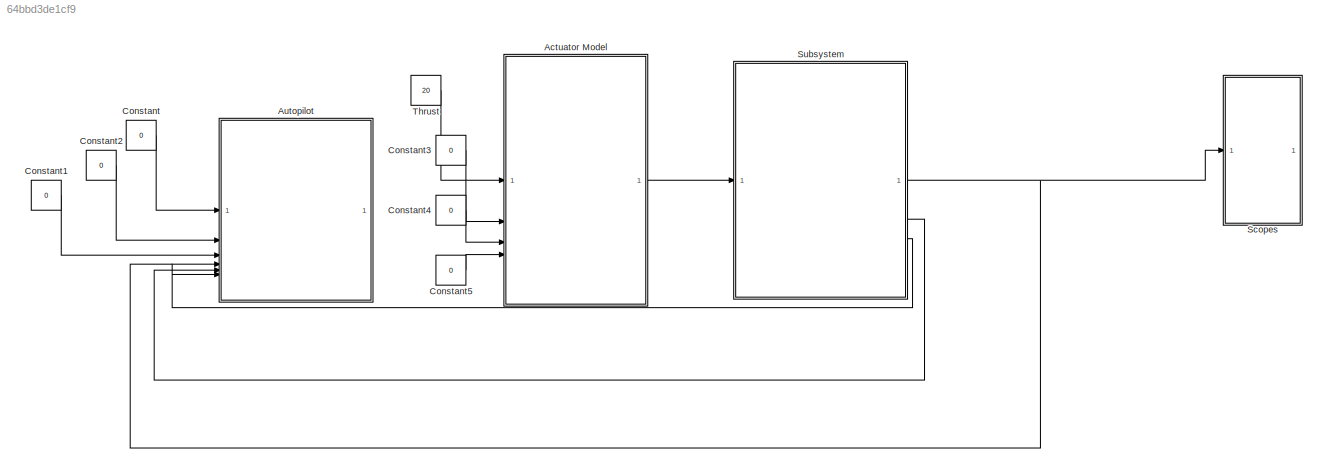
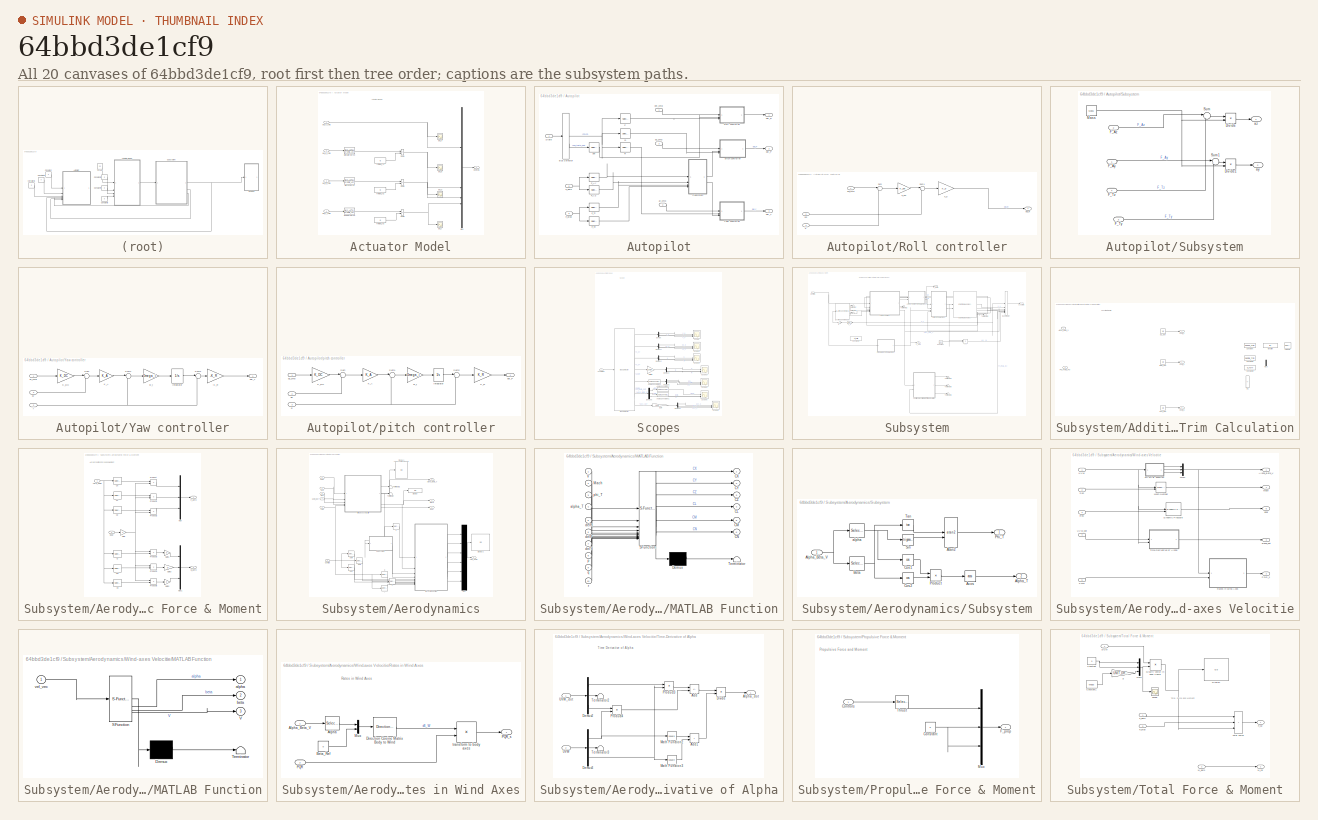
[diagram: thumbnail index - all 20 canvases of the model, root first then tree order]
MODEL slx_64bbd3de1cf9
KIND model
CONFIG AbsTol = auto
CONFIG EnableMultiTasking = off
CONFIG FixedStep = 0.01
CONFIG InitFcn = clc, clear, close all\nUAV_Data\nSim_Parameters
CONFIG MaxStep = auto
CONFIG MinStep = auto
CONFIG RelTol = 1e-3
CONFIG SampleTimeConstraint = Unconstrained
CONFIG SolverName = ode4
CONFIG StartTime = 0.0
CONFIG StopTime = 50
BLOCK [SubSystem] Actuator Model
BLOCK [TransferFcn] Actuator Model/Aileron Servo
  Denominator = [1 2*Zeta_Act*Wn_Act Wn_Act^2]
  Numerator = [Wn_Act^2]
BLOCK [Outport] Actuator Model/Controls
BLOCK [TransferFcn] Actuator Model/Elevator Servo
  Denominator = [1 2*Zeta_Act*Wn_Act Wn_Act^2]
  Numerator = [Wn_Act^2]
BLOCK [Mux] Actuator Model/Mux
  DisplayOption = bar
BLOCK [TransferFcn] Actuator Model/Rudder Servo
  Denominator = [1 2*Zeta_Act*Wn_Act Wn_Act^2]
  Numerator = [Wn_Act^2]
BLOCK [Sum] Actuator Model/Sum1
  IconShape = rectangular
  SaturateOnIntegerOverflow = on
BLOCK [Sum] Actuator Model/Sum2
  IconShape = rectangular
  SaturateOnIntegerOverflow = on
BLOCK [Sum] Actuator Model/Sum3
  IconShape = rectangular
  SaturateOnIntegerOverflow = on
BLOCK [Constant] Actuator Model/Trim del_T1
  Value = 0
BLOCK [Constant] Actuator Model/Trim del_T2
  Value = 0
BLOCK [Constant] Actuator Model/Trim del_T3
  Value = 0
BLOCK [Scope] Actuator Model/del_T
  Floating = off
  NumInputPorts = 1
  ScopeSpecificationString = Simulink.scopes.TimeScopeBlockCfg('CurrentConfiguration', extmgr.ConfigurationSet(extmgr.Configuration('Core','General UI',true),extmgr.Configuration('Core','Source UI',true),extmgr.Configuration('Sources','WiredSimulink',true,'DataLoggingVariableName','ScopeData1'),extmgr.Configuration('Visuals','Time Domain',true,'SerializedDisplays',{struct('MinYLimReal','10.00000','MaxYLimReal','30.00000','YLa...<+1434ch>
BLOCK [Inport] Actuator Model/del_T_cmd
BLOCK [Scope] Actuator Model/del_a
  Floating = off
  NumInputPorts = 1
  ScopeSpecificationString = Simulink.scopes.TimeScopeBlockCfg('CurrentConfiguration', extmgr.ConfigurationSet(extmgr.Configuration('Core','General UI',true),extmgr.Configuration('Core','Source UI',true),extmgr.Configuration('Sources','WiredSimulink',true,'DataLoggingVariableName','ScopeData3'),extmgr.Configuration('Visuals','Time Domain',true,'SerializedDisplays',{struct('MinYLimReal','-1.00000','MaxYLimReal','1.00000','YLab...<+1388ch>
BLOCK [Inport] Actuator Model/del_a_cmd
  Port = 3
BLOCK [Scope] Actuator Model/del_e
  Floating = off
  NumInputPorts = 1
  ScopeSpecificationString = Simulink.scopes.TimeScopeBlockCfg('CurrentConfiguration', extmgr.ConfigurationSet(extmgr.Configuration('Core','General UI',true),extmgr.Configuration('Core','Source UI',true),extmgr.Configuration('Sources','WiredSimulink',true,'DataLoggingVariableName','ScopeData2'),extmgr.Configuration('Visuals','Time Domain',true,'SerializedDisplays',{struct('MinYLimReal','-1.00000','MaxYLimReal','1.00000','YLab...<+1388ch>
BLOCK [Inport] Actuator Model/del_e_cmd
  Port = 2
BLOCK [Scope] Actuator Model/del_r
  Floating = off
  NumInputPorts = 1
  ScopeSpecificationString = Simulink.scopes.TimeScopeBlockCfg('CurrentConfiguration', extmgr.ConfigurationSet(extmgr.Configuration('Core','General UI',true),extmgr.Configuration('Core','Source UI',true),extmgr.Configuration('Sources','WiredSimulink',true,'DataLoggingVariableName','ScopeData4'),extmgr.Configuration('Visuals','Time Domain',true,'SerializedDisplays',{struct('MinYLimReal','-1.00000','MaxYLimReal','1.00000','YLab...<+1388ch>
BLOCK [Inport] Actuator Model/del_r_cmd
  Port = 4
BLOCK [SubSystem] Autopilot
  Commented = on
BLOCK [BusSelector] Autopilot/Bus Selector
  OutputSignals = PQR,Phi_theta_psi
BLOCK [Selector] Autopilot/F_Ay
  IndexOptions = Index vector (dialog)
  Indices = [2]
  InputPortWidth = 3
  OutputSizes = 1
BLOCK [Selector] Autopilot/F_Az
  IndexOptions = Index vector (dialog)
  Indices = [3]
  InputPortWidth = 3
  OutputSizes = 1
BLOCK [Selector] Autopilot/F_Ty
  IndexOptions = Index vector (dialog)
  Indices = [2]
  InputPortWidth = 3
  OutputSizes = 1
BLOCK [Selector] Autopilot/F_Tz
  IndexOptions = Index vector (dialog)
  Indices = [3]
  InputPortWidth = 3
  OutputSizes = 1
BLOCK [Inport] Autopilot/F_aero
  Port = 5
BLOCK [Inport] Autopilot/F_prop
  Port = 6
BLOCK [Selector] Autopilot/P
  IndexOptions = Index vector (dialog)
  Indices = [1]
  InputPortWidth = 3
  OutputSizes = 1
BLOCK [Selector] Autopilot/Q
  IndexOptions = Index vector (dialog)
  Indices = [2]
  InputPortWidth = 3
  OutputSizes = 1
BLOCK [Selector] Autopilot/R
  IndexOptions = Index vector (dialog)
  Indices = [3]
  InputPortWidth = 3
  OutputSizes = 1
BLOCK [SubSystem] Autopilot/Roll controller
BLOCK [Gain] Autopilot/Roll controller/K_p
  Gain = K_p
BLOCK [Gain] Autopilot/Roll controller/K_phi
  Gain = K_phi
BLOCK [Sum] Autopilot/Roll controller/Sum
  Inputs = |+-
BLOCK [Sum] Autopilot/Roll controller/Sum1
  Inputs = |+-
BLOCK [Outport] Autopilot/Roll controller/del_R
BLOCK [Inport] Autopilot/Roll controller/p
  Port = 3
BLOCK [Inport] Autopilot/Roll controller/phi
  Port = 2
BLOCK [Inport] Autopilot/Roll controller/phi_cmd
BLOCK [Inport] Autopilot/State
  Port = 4
BLOCK [SubSystem] Autopilot/Subsystem
BLOCK [Product] Autopilot/Subsystem/Divide
  Inputs = */
BLOCK [Product] Autopilot/Subsystem/Divide1
  Inputs = */
BLOCK [Inport] Autopilot/Subsystem/F_Ay
BLOCK [Inport] Autopilot/Subsystem/F_Az
  Port = 2
BLOCK [Inport] Autopilot/Subsystem/F_Ty
  Port = 3
BLOCK [Inport] Autopilot/Subsystem/F_Tz
  Port = 4
BLOCK [Constant] Autopilot/Subsystem/Mass
  Value = Mass
BLOCK [Sum] Autopilot/Subsystem/Sum
  Inputs = |++
BLOCK [Sum] Autopilot/Subsystem/Sum1
  Inputs = |++
BLOCK [Outport] Autopilot/Subsystem/ay
  Port = 2
BLOCK [Outport] Autopilot/Subsystem/az
BLOCK [SubSystem] Autopilot/Yaw controller
BLOCK [Gain] Autopilot/Yaw controller/-K_R
  Gain = -K_R
BLOCK [Integrator] Autopilot/Yaw controller/Integrator
BLOCK [Gain] Autopilot/Yaw controller/K_A
  Gain = K_A
BLOCK [Gain] Autopilot/Yaw controller/K_DC
  Gain = K_DC
BLOCK [Sum] Autopilot/Yaw controller/Sum
  Inputs = |+-
BLOCK [Sum] Autopilot/Yaw controller/Sum1
  Inputs = |--
BLOCK [Sum] Autopilot/Yaw controller/Sum2
  Inputs = |+-
BLOCK [Inport] Autopilot/Yaw controller/ay
  Port = 3
BLOCK [Inport] Autopilot/Yaw controller/ay_cmd
BLOCK [Outport] Autopilot/Yaw controller/del_Y
BLOCK [Inport] Autopilot/Yaw controller/r
  Port = 2
BLOCK [Gain] Autopilot/Yaw controller/w_i
  Gain = Omega_i
BLOCK [Inport] Autopilot/ay_cmd
  Port = 2
BLOCK [Inport] Autopilot/az_cmd
  Port = 3
BLOCK [Outport] Autopilot/del_P
  Port = 2
BLOCK [Outport] Autopilot/del_R
BLOCK [Outport] Autopilot/del_Y
  Port = 3
BLOCK [Selector] Autopilot/phi
  IndexOptions = Index vector (dialog)
  Indices = [1]
  InputPortWidth = 3
  OutputSizes = 1
BLOCK [Inport] Autopilot/phi_cmd
BLOCK [SubSystem] Autopilot/pitch controller
BLOCK [Integrator] Autopilot/pitch controller/Integrator
BLOCK [Gain] Autopilot/pitch controller/K_A
  Gain = K_A
BLOCK [Gain] Autopilot/pitch controller/K_DC
  Gain = K_DC
BLOCK [Gain] Autopilot/pitch controller/K_R
  Gain = K_R
BLOCK [Sum] Autopilot/pitch controller/Sum
  Inputs = |+-
BLOCK [Sum] Autopilot/pitch controller/Sum1
  Inputs = |-+
BLOCK [Sum] Autopilot/pitch controller/Sum2
  Inputs = |++
BLOCK [Inport] Autopilot/pitch controller/az
  Port = 2
BLOCK [Inport] Autopilot/pitch controller/az_cmd
BLOCK [Outport] Autopilot/pitch controller/del_P
BLOCK [Inport] Autopilot/pitch controller/q
  Port = 3
BLOCK [Gain] Autopilot/pitch controller/w_i
  Gain = Omega_i
BLOCK [Constant] Constant
  Value = 0
BLOCK [Constant] Constant1
  Value = 0
BLOCK [Constant] Constant2
  Value = 0
BLOCK [Constant] Constant3
  Value = 0
BLOCK [Constant] Constant4
  Value = 0
BLOCK [Constant] Constant5
  Value = 0
BLOCK [SubSystem] Scopes
BLOCK [Reference] Scopes/Angle Conversion1  REF=aerolibconvert2/Angle Conversion
  SourceBlock = aerolibconvert2/Angle Conversion
  SourceType = Angle Conversion
BLOCK [Reference] Scopes/Angle Conversion6  REF=aerolibconvert2/Angle Conversion
  SourceBlock = aerolibconvert2/Angle Conversion
  SourceType = Angle Conversion
BLOCK [Reference] Scopes/Angle Conversion7  REF=aerolibconvert2/Angle Conversion
  SourceBlock = aerolibconvert2/Angle Conversion
  SourceType = Angle Conversion
BLOCK [BusSelector] Scopes/Bus Selector
  OutputSignals = X_e,V_e,UVW,PQR,Phi_theta_psi,Alpha_Beta_V,acc_cg
BLOCK [Demux] Scopes/Demux
  Outputs = 3
BLOCK [Demux] Scopes/Demux1
  Outputs = 3
BLOCK [Demux] Scopes/Demux2
  Outputs = 3
BLOCK [Demux] Scopes/Demux3
  Outputs = 3
BLOCK [Demux] Scopes/Demux4
  Outputs = 3
BLOCK [Demux] Scopes/Demux5
  Outputs = 3
BLOCK [Demux] Scopes/Demux6
  Outputs = 3
BLOCK [Gain] Scopes/Gain
  Gain = 1/UNIT_GRAV
BLOCK [Gain] Scopes/Multiply
  Gain = 180/pi
BLOCK [Scope] Scopes/Scope
  Floating = off
  NumInputPorts = 3
  ScopeSpecificationString = Simulink.scopes.TimeScopeBlockCfg('CurrentConfiguration', extmgr.ConfigurationSet(extmgr.Configuration('Core','General UI',true),extmgr.Configuration('Core','Source UI',true),extmgr.Configuration('Sources','WiredSimulink',true,'DataLoggingVariableName','ScopeData5'),extmgr.Configuration('Visuals','Time Domain',true,'SerializedDisplays',{struct('MinYLimReal','-863.58241','MaxYLimReal','7772.2417','...<+2810ch>
BLOCK [Scope] Scopes/Scope1
  Floating = off
  NumInputPorts = 3
  ScopeSpecificationString = Simulink.scopes.TimeScopeBlockCfg('CurrentConfiguration', extmgr.ConfigurationSet(extmgr.Configuration('Core','General UI',true),extmgr.Configuration('Core','Source UI',true),extmgr.Configuration('Sources','WiredSimulink',true,'DataLoggingVariableName','ScopeData1'),extmgr.Configuration('Visuals','Time Domain',true,'SerializedDisplays',{struct('MinYLimReal','42.6534','MaxYLimReal','259.70518','YLa...<+2794ch>
BLOCK [Scope] Scopes/Scope2
  Floating = off
  NumInputPorts = 3
  ScopeSpecificationString = Simulink.scopes.TimeScopeBlockCfg('CurrentConfiguration', extmgr.ConfigurationSet(extmgr.Configuration('Core','General UI',true),extmgr.Configuration('Core','Source UI',true),extmgr.Configuration('Sources','WiredSimulink',true,'DataLoggingVariableName','ScopeData2'),extmgr.Configuration('Visuals','Time Domain',true,'SerializedDisplays',{struct('MinYLimReal','199.47505','MaxYLimReal','277.11228','Y...<+2791ch>
BLOCK [Scope] Scopes/Scope3
  Floating = off
  NumInputPorts = 3
  ScopeSpecificationString = Simulink.scopes.TimeScopeBlockCfg('CurrentConfiguration', extmgr.ConfigurationSet(extmgr.Configuration('Core','General UI',true),extmgr.Configuration('Core','Source UI',true),extmgr.Configuration('Sources','WiredSimulink',true,'DataLoggingVariableName','ScopeData3'),extmgr.Configuration('Visuals','Time Domain',true,'SerializedDisplays',{struct('MinYLimReal','-4.98411','MaxYLimReal','0.55379','YLab...<+1804ch>
BLOCK [Scope] Scopes/Scope4
  Floating = off
  NumInputPorts = 3
  ScopeSpecificationString = Simulink.scopes.TimeScopeBlockCfg('CurrentConfiguration', extmgr.ConfigurationSet(extmgr.Configuration('Core','General UI',true),extmgr.Configuration('Core','Source UI',true),extmgr.Configuration('Sources','WiredSimulink',true,'DataLoggingVariableName','ScopeData4'),extmgr.Configuration('Visuals','Time Domain',true,'SerializedDisplays',{struct('MinYLimReal','-0.000000000000000000018','MaxYLimReal'...<+2858ch>
BLOCK [Scope] Scopes/Scope5
  Floating = off
  NumInputPorts = 3
  ScopeSpecificationString = Simulink.scopes.TimeScopeBlockCfg('CurrentConfiguration', extmgr.ConfigurationSet(extmgr.Configuration('Core','General UI',true),extmgr.Configuration('Core','Source UI',true),extmgr.Configuration('Sources','WiredSimulink',true,'DataLoggingVariableName','ScopeData6'),extmgr.Configuration('Visuals','Time Domain',true,'SerializedDisplays',{struct('MinYLimReal','-0.67057','MaxYLimReal','0.86654','YLab...<+2796ch>
BLOCK [Scope] Scopes/Scope6
  Floating = off
  NumInputPorts = 3
  ScopeSpecificationString = Simulink.scopes.TimeScopeBlockCfg('CurrentConfiguration', extmgr.ConfigurationSet(extmgr.Configuration('Core','General UI',true),extmgr.Configuration('Core','Source UI',true),extmgr.Configuration('Sources','WiredSimulink',true,'DataLoggingVariableName','ScopeData7'),extmgr.Configuration('Visuals','Time Domain',true),extmgr.Configuration('Tools','Plot Navigation',true),extmgr.Configuration('Tools',...<+40ch>
BLOCK [Inport] Scopes/UAS States
BLOCK [SubSystem] Subsystem
BLOCK [Reference] Subsystem/6DOF (Euler Angles)  REF=shared6dof/6DOF (Euler Angles)
  LibrarySourceBlock = aerolib6dof2/6DOF (Euler Angles)
  SourceBlock = shared6dof/6DOF (Euler Angles)
  SourceType = 6DOF EoM (Body Axis)
BLOCK [Product] Subsystem/Acc
  Inputs = */
  RndMeth = Zero
BLOCK [SubSystem] Subsystem/Additional Contraints for Trim Calculation
  Commented = on
BLOCK [Inport] Subsystem/Additional Contraints for Trim Calculation/Alpha_Beta_V
  PortDimensions = 3
BLOCK [Integrator] Subsystem/Additional Contraints for Trim Calculation/CTC_dot
  InitialCondition = Init_Cnstr3
BLOCK [Outport] Subsystem/Additional Contraints for Trim Calculation/Cnstr_1
BLOCK [Outport] Subsystem/Additional Contraints for Trim Calculation/Cnstr_2
  Port = 2
BLOCK [Outport] Subsystem/Additional Contraints for Trim Calculation/Cnstr_3
  Port = 3
BLOCK [Constant] Subsystem/Additional Contraints for Trim Calculation/Constant
  Value = Speed_Trim
BLOCK [Constant] Subsystem/Additional Contraints for Trim Calculation/Constant1
  Value = Gamma_Trim
BLOCK [Constant] Subsystem/Additional Contraints for Trim Calculation/Constant2
  Value = G_Turn
BLOCK [Mux] Subsystem/Additional Contraints for Trim Calculation/Mux
  DisplayOption = bar
  Inputs = 2
BLOCK [Inport] Subsystem/Additional Contraints for Trim Calculation/Phi_Theta_Psi
  Port = 2
  PortDimensions = 3
BLOCK [Integrator] Subsystem/Additional Contraints for Trim Calculation/ROC_dot
  InitialCondition = Init_Cnstr2
BLOCK [Sum] Subsystem/Additional Contraints for Trim Calculation/SC
  IconShape = rectangular
  Inputs = +-
BLOCK [Integrator] Subsystem/Additional Contraints for Trim Calculation/SC_dot
  InitialCondition = Init_Cnstr1
BLOCK [Fcn] Subsystem/Additional Contraints for Trim Calculation/function
BLOCK [Selector] Subsystem/Additional Contraints for Trim Calculation/selector
  IndexOptions = Index vector (dialog)
  Indices = [3]
  InputPortWidth = 3
  OutputSizes = 1
BLOCK [SubSystem] Subsystem/Aerodynamic Force & Moment
BLOCK [Inport] Subsystem/Aerodynamic Force & Moment/Aero_Coeff
BLOCK [Selector] Subsystem/Aerodynamic Force & Moment/CX
  IndexOptions = Index vector (dialog)
  Indices = [1]
  InputPortWidth = 6
  OutputSizes = 1
BLOCK [Selector] Subsystem/Aerodynamic Force & Moment/CY
  IndexOptions = Index vector (dialog)
  Indices = [2]
  InputPortWidth = 6
  OutputSizes = 1
BLOCK [Selector] Subsystem/Aerodynamic Force & Moment/CZ
  IndexOptions = Index vector (dialog)
  Indices = [3]
  InputPortWidth = 6
  OutputSizes = 1
BLOCK [Selector] Subsystem/Aerodynamic Force & Moment/Cl
  IndexOptions = Index vector (dialog)
  Indices = [4]
  InputPortWidth = 6
  OutputSizes = 1
BLOCK [Selector] Subsystem/Aerodynamic Force & Moment/Cm
  IndexOptions = Index vector (dialog)
  Indices = [5]
  InputPortWidth = 6
  OutputSizes = 1
BLOCK [Selector] Subsystem/Aerodynamic Force & Moment/Cn
  IndexOptions = Index vector (dialog)
  Indices = [6]
  InputPortWidth = 6
  OutputSizes = 1
BLOCK [Outport] Subsystem/Aerodynamic Force & Moment/F_aero
BLOCK [Gain] Subsystem/Aerodynamic Force & Moment/Gain
  Gain = S
BLOCK [Gain] Subsystem/Aerodynamic Force & Moment/Gain1
  Gain = D
BLOCK [Gain] Subsystem/Aerodynamic Force & Moment/Gain2
  Gain = D
BLOCK [Gain] Subsystem/Aerodynamic Force & Moment/Gain3
  Gain = D
BLOCK [Outport] Subsystem/Aerodynamic Force & Moment/M_aero
  Port = 2
BLOCK [Mux] Subsystem/Aerodynamic Force & Moment/Mux
  DisplayOption = bar
  Inputs = 3
BLOCK [Mux] Subsystem/Aerodynamic Force & Moment/Mux1
  DisplayOption = bar
  Inputs = 3
BLOCK [Product] Subsystem/Aerodynamic Force & Moment/Product
BLOCK [Product] Subsystem/Aerodynamic Force & Moment/Product1
BLOCK [Product] Subsystem/Aerodynamic Force & Moment/Product2
BLOCK [Product] Subsystem/Aerodynamic Force & Moment/Product3
BLOCK [Product] Subsystem/Aerodynamic Force & Moment/Product4
BLOCK [Product] Subsystem/Aerodynamic Force & Moment/Product5
BLOCK [Inport] Subsystem/Aerodynamic Force & Moment/qbar
  Port = 2
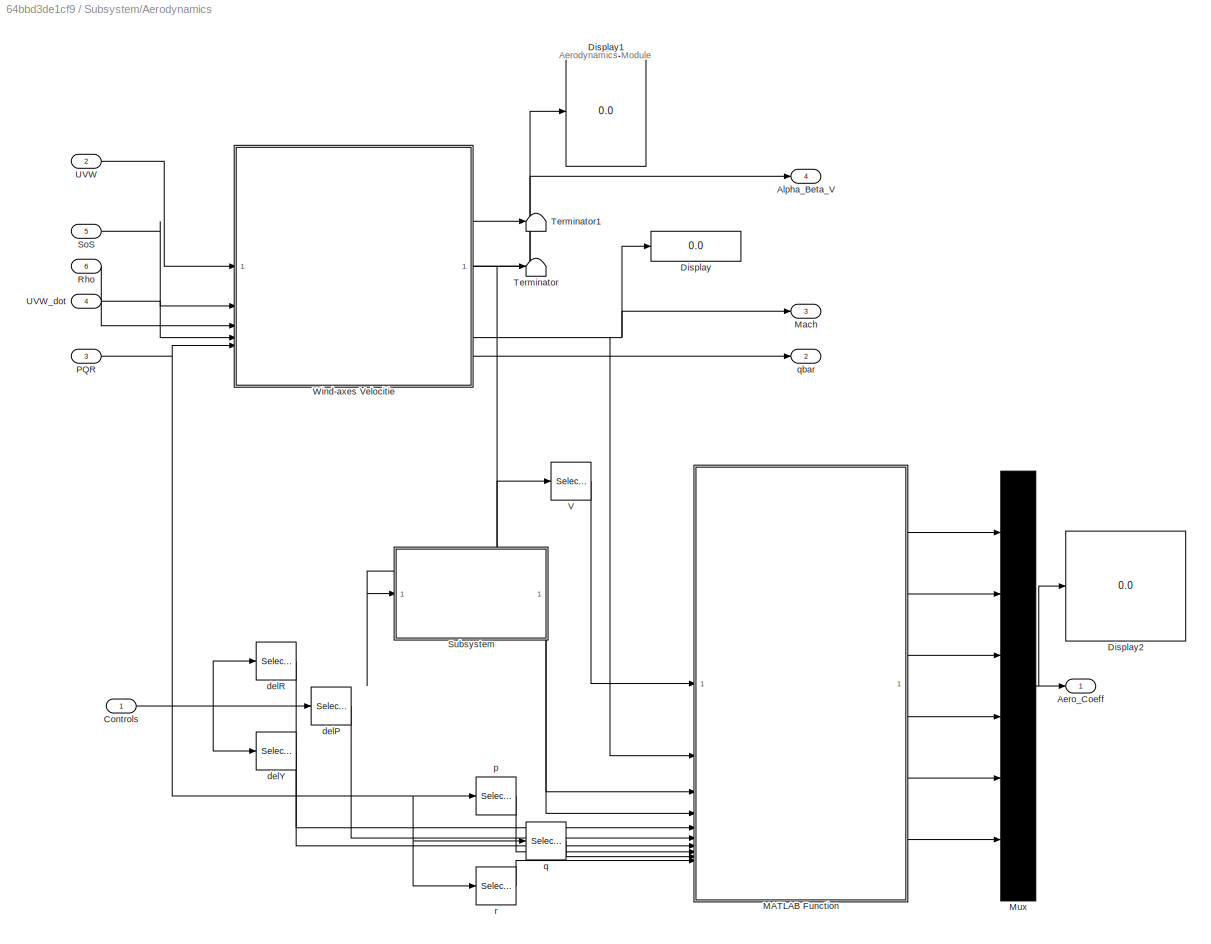
BLOCK [SubSystem] Subsystem/Aerodynamics
BLOCK [Outport] Subsystem/Aerodynamics/Aero_Coeff
BLOCK [Outport] Subsystem/Aerodynamics/Alpha_Beta_V
  Port = 4
BLOCK [Inport] Subsystem/Aerodynamics/Controls
BLOCK [Display] Subsystem/Aerodynamics/Display
  Decimation = 1
BLOCK [Display] Subsystem/Aerodynamics/Display1
  Decimation = 1
BLOCK [Display] Subsystem/Aerodynamics/Display2
  Decimation = 1
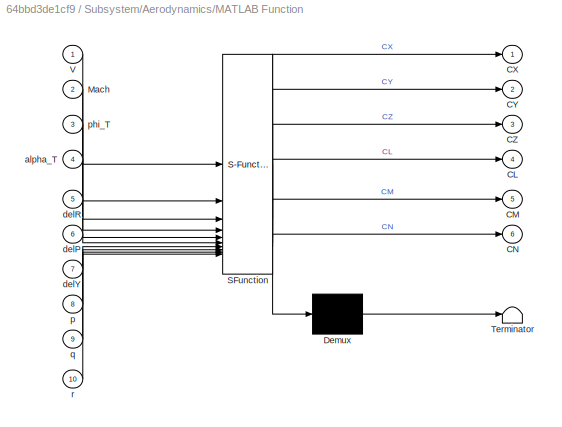
BLOCK [SubSystem] Subsystem/Aerodynamics/MATLAB Function
  ErrorFcn = Stateflow.Translate.translate
  LibrarySourceBlock = simulink/User-Defined\nFunctions/MATLAB Function
  PermitHierarchicalResolution = ExplicitOnly
  SFBlockType = MATLAB Function
  TreatAsAtomicUnit = on
BLOCK [Demux] Subsystem/Aerodynamics/MATLAB Function/ Demux 
  Outputs = 1
BLOCK [S-Function] Subsystem/Aerodynamics/MATLAB Function/ SFunction 
  EnableBusSupport = on
  FunctionName = sf_sfun
  PortCounts = [10 7]
  SFcnIsStateOwnerBlock = off
  SFunctionDeploymentMode = off
  Tag = Stateflow S-Function 2
BLOCK [Terminator] Subsystem/Aerodynamics/MATLAB Function/ Terminator 
BLOCK [Outport] Subsystem/Aerodynamics/MATLAB Function/CL
  Port = 4
BLOCK [Outport] Subsystem/Aerodynamics/MATLAB Function/CM
  Port = 5
BLOCK [Outport] Subsystem/Aerodynamics/MATLAB Function/CN
  Port = 6
BLOCK [Outport] Subsystem/Aerodynamics/MATLAB Function/CX
BLOCK [Outport] Subsystem/Aerodynamics/MATLAB Function/CY
  Port = 2
BLOCK [Outport] Subsystem/Aerodynamics/MATLAB Function/CZ
  Port = 3
BLOCK [Inport] Subsystem/Aerodynamics/MATLAB Function/Mach
  Port = 2
BLOCK [Inport] Subsystem/Aerodynamics/MATLAB Function/V
BLOCK [Inport] Subsystem/Aerodynamics/MATLAB Function/alpha_T
  Port = 4
BLOCK [Inport] Subsystem/Aerodynamics/MATLAB Function/delP
  Port = 6
BLOCK [Inport] Subsystem/Aerodynamics/MATLAB Function/delR
  Port = 5
BLOCK [Inport] Subsystem/Aerodynamics/MATLAB Function/delY
  Port = 7
BLOCK [Inport] Subsystem/Aerodynamics/MATLAB Function/p
  Port = 8
BLOCK [Inport] Subsystem/Aerodynamics/MATLAB Function/phi_T
  Port = 3
BLOCK [Inport] Subsystem/Aerodynamics/MATLAB Function/q
  Port = 9
BLOCK [Inport] Subsystem/Aerodynamics/MATLAB Function/r
  Port = 10
BLOCK [Outport] Subsystem/Aerodynamics/Mach
  Port = 3
BLOCK [Mux] Subsystem/Aerodynamics/Mux
  DisplayOption = bar
  Inputs = 6
BLOCK [Inport] Subsystem/Aerodynamics/PQR
  Port = 3
BLOCK [Inport] Subsystem/Aerodynamics/Rho
  Port = 6
BLOCK [Inport] Subsystem/Aerodynamics/SoS
  Port = 5
BLOCK [SubSystem] Subsystem/Aerodynamics/Subsystem
BLOCK [Trigonometry] Subsystem/Aerodynamics/Subsystem/Acos
  Operator = acos
BLOCK [Inport] Subsystem/Aerodynamics/Subsystem/Alpha_Beta_V
BLOCK [Outport] Subsystem/Aerodynamics/Subsystem/Alpha_T
  Port = 2
BLOCK [Trigonometry] Subsystem/Aerodynamics/Subsystem/Atan2
  Operator = atan2
BLOCK [Selector] Subsystem/Aerodynamics/Subsystem/Beta
  IndexOptions = Index vector (dialog)
  Indices = [2]
  InputPortWidth = 3
  OutputSizes = 1
BLOCK [Trigonometry] Subsystem/Aerodynamics/Subsystem/Cos1
  Operator = cos
BLOCK [Trigonometry] Subsystem/Aerodynamics/Subsystem/Cos2
  Operator = cos
BLOCK [Outport] Subsystem/Aerodynamics/Subsystem/Phi_T
BLOCK [Product] Subsystem/Aerodynamics/Subsystem/Product
BLOCK [Trigonometry] Subsystem/Aerodynamics/Subsystem/Sin
BLOCK [Trigonometry] Subsystem/Aerodynamics/Subsystem/Tan
  Operator = tan
BLOCK [Selector] Subsystem/Aerodynamics/Subsystem/alpha
  IndexOptions = Index vector (dialog)
  Indices = [1]
  InputPortWidth = 3
  OutputSizes = 1
BLOCK [Terminator] Subsystem/Aerodynamics/Terminator
BLOCK [Terminator] Subsystem/Aerodynamics/Terminator1
BLOCK [Inport] Subsystem/Aerodynamics/UVW
  Port = 2
BLOCK [Inport] Subsystem/Aerodynamics/UVW_dot 
  Port = 4
BLOCK [Selector] Subsystem/Aerodynamics/V
  IndexOptions = Index vector (dialog)
  Indices = [3]
  InputPortWidth = 3
  OutputSizes = 1
BLOCK [SubSystem] Subsystem/Aerodynamics/Wind-axes Velocitie
BLOCK [Outport] Subsystem/Aerodynamics/Wind-axes Velocitie/Alpha_Beta_V
BLOCK [Reference] Subsystem/Aerodynamics/Wind-axes Velocitie/Dynamic Pressure  REF=aerolibasang/Dynamic Pressure
  SourceBlock = aerolibasang/Dynamic Pressure
  SourceType = Dynamic Pressure
BLOCK [SubSystem] Subsystem/Aerodynamics/Wind-axes Velocitie/MATLAB Function
  ErrorFcn = Stateflow.Translate.translate
  LibrarySourceBlock = simulink/User-Defined\nFunctions/MATLAB Function
  PermitHierarchicalResolution = ExplicitOnly
  SFBlockType = MATLAB Function
  TreatAsAtomicUnit = on
BLOCK [Demux] Subsystem/Aerodynamics/Wind-axes Velocitie/MATLAB Function/ Demux 
  Outputs = 1
BLOCK [S-Function] Subsystem/Aerodynamics/Wind-axes Velocitie/MATLAB Function/ SFunction 
  EnableBusSupport = on
  FunctionName = sf_sfun
  PortCounts = [1 4]
  SFcnIsStateOwnerBlock = off
  SFunctionDeploymentMode = off
  Tag = Stateflow S-Function 1
BLOCK [Terminator] Subsystem/Aerodynamics/Wind-axes Velocitie/MATLAB Function/ Terminator 
BLOCK [Outport] Subsystem/Aerodynamics/Wind-axes Velocitie/MATLAB Function/V
  Port = 3
BLOCK [Outport] Subsystem/Aerodynamics/Wind-axes Velocitie/MATLAB Function/alpha
BLOCK [Outport] Subsystem/Aerodynamics/Wind-axes Velocitie/MATLAB Function/beta
  Port = 2
BLOCK [Inport] Subsystem/Aerodynamics/Wind-axes Velocitie/MATLAB Function/vel_vec
BLOCK [Outport] Subsystem/Aerodynamics/Wind-axes Velocitie/Mach
  Port = 4
BLOCK [Reference] Subsystem/Aerodynamics/Wind-axes Velocitie/Mach Number  REF=aerolibasang/Mach Number
  SourceBlock = aerolibasang/Mach Number
  SourceType = Mach Number
BLOCK [Mux] Subsystem/Aerodynamics/Wind-axes Velocitie/Mux1
  DisplayOption = bar
  Inputs = 3
BLOCK [Inport] Subsystem/Aerodynamics/Wind-axes Velocitie/PQR
  Port = 5
BLOCK [Outport] Subsystem/Aerodynamics/Wind-axes Velocitie/PQR_s
  Port = 2
BLOCK [SubSystem] Subsystem/Aerodynamics/Wind-axes Velocitie/Rates in Wind Axes
BLOCK [Selector] Subsystem/Aerodynamics/Wind-axes Velocitie/Rates in Wind Axes/Alpha
  IndexOptions = Index vector (dialog)
  Indices = [1]
  InputPortWidth = 3
  OutputSizes = 1
BLOCK [Inport] Subsystem/Aerodynamics/Wind-axes Velocitie/Rates in Wind Axes/Alpha_Beta_V
BLOCK [Constant] Subsystem/Aerodynamics/Wind-axes Velocitie/Rates in Wind Axes/Beta_Ref
  Value = 0
BLOCK [Reference] Subsystem/Aerodynamics/Wind-axes Velocitie/Rates in Wind Axes/Direction Cosine Matrix Body to Wind  REF=aerolibtransform2/Direction Cosine Matrix
Body to Wind
  SourceBlock = aerolibtransform2/Direction Cosine Matrix\nBody to Wind
  SourceType = DCM Body to Wind
BLOCK [Mux] Subsystem/Aerodynamics/Wind-axes Velocitie/Rates in Wind Axes/Mux
  DisplayOption = bar
  Inputs = 2
BLOCK [Inport] Subsystem/Aerodynamics/Wind-axes Velocitie/Rates in Wind Axes/PQR
  Port = 2
BLOCK [Outport] Subsystem/Aerodynamics/Wind-axes Velocitie/Rates in Wind Axes/PQR_s
BLOCK [Product] Subsystem/Aerodynamics/Wind-axes Velocitie/Rates in Wind Axes/transform to body axes
  InputSameDT = on
  Inputs = **
  Multiplication = Matrix(*)
  OutDataTypeStr = Inherit: Same as first input
  SaturateOnIntegerOverflow = on
BLOCK [Inport] Subsystem/Aerodynamics/Wind-axes Velocitie/Rho
  Port = 3
BLOCK [Inport] Subsystem/Aerodynamics/Wind-axes Velocitie/SoS
  Port = 2
BLOCK [SubSystem] Subsystem/Aerodynamics/Wind-axes Velocitie/Time-Derivative of Alpha
BLOCK [Sum] Subsystem/Aerodynamics/Wind-axes Velocitie/Time-Derivative of Alpha/Add
  IconShape = rectangular
  Inputs = -+
BLOCK [Sum] Subsystem/Aerodynamics/Wind-axes Velocitie/Time-Derivative of Alpha/Add1
  IconShape = rectangular
BLOCK [Outport] Subsystem/Aerodynamics/Wind-axes Velocitie/Time-Derivative of Alpha/Alpha_dot
BLOCK [Demux] Subsystem/Aerodynamics/Wind-axes Velocitie/Time-Derivative of Alpha/Demux2
  Outputs = 3
BLOCK [Demux] Subsystem/Aerodynamics/Wind-axes Velocitie/Time-Derivative of Alpha/Demux3
  Outputs = 3
BLOCK [Product] Subsystem/Aerodynamics/Wind-axes Velocitie/Time-Derivative of Alpha/Divide
  Inputs = */
BLOCK [Math] Subsystem/Aerodynamics/Wind-axes Velocitie/Time-Derivative of Alpha/Math Function2
  Operator = square
  SignedPower = on
BLOCK [Math] Subsystem/Aerodynamics/Wind-axes Velocitie/Time-Derivative of Alpha/Math Function3
  Operator = square
  SignedPower = on
BLOCK [Product] Subsystem/Aerodynamics/Wind-axes Velocitie/Time-Derivative of Alpha/Product3
BLOCK [Product] Subsystem/Aerodynamics/Wind-axes Velocitie/Time-Derivative of Alpha/Product4
BLOCK [Terminator] Subsystem/Aerodynamics/Wind-axes Velocitie/Time-Derivative of Alpha/Terminator2
BLOCK [Terminator] Subsystem/Aerodynamics/Wind-axes Velocitie/Time-Derivative of Alpha/Terminator3
BLOCK [Inport] Subsystem/Aerodynamics/Wind-axes Velocitie/Time-Derivative of Alpha/UVW
  Port = 2
BLOCK [Inport] Subsystem/Aerodynamics/Wind-axes Velocitie/Time-Derivative of Alpha/UVW_dot
BLOCK [Inport] Subsystem/Aerodynamics/Wind-axes Velocitie/UVW
BLOCK [Inport] Subsystem/Aerodynamics/Wind-axes Velocitie/UVW_dot
  Port = 4
BLOCK [Outport] Subsystem/Aerodynamics/Wind-axes Velocitie/alpha_dot
  Port = 3
BLOCK [Outport] Subsystem/Aerodynamics/Wind-axes Velocitie/qbar
  Port = 5
BLOCK [Selector] Subsystem/Aerodynamics/delP
  IndexOptions = Index vector (dialog)
  Indices = [3]
  InputPortWidth = 4
  OutputSizes = 1
BLOCK [Selector] Subsystem/Aerodynamics/delR
  IndexOptions = Index vector (dialog)
  Indices = [2]
  InputPortWidth = 4
  OutputSizes = 1
BLOCK [Selector] Subsystem/Aerodynamics/delY
  IndexOptions = Index vector (dialog)
  Indices = [4]
  InputPortWidth = 4
  OutputSizes = 1
BLOCK [Selector] Subsystem/Aerodynamics/p
  IndexOptions = Index vector (dialog)
  Indices = [1]
  InputPortWidth = 3
  OutputSizes = 1
BLOCK [Selector] Subsystem/Aerodynamics/q
  IndexOptions = Index vector (dialog)
  Indices = [2]
  InputPortWidth = 3
  OutputSizes = 1
BLOCK [Outport] Subsystem/Aerodynamics/qbar
  Port = 2
BLOCK [Selector] Subsystem/Aerodynamics/r
  IndexOptions = Index vector (dialog)
  Indices = [3]
  InputPortWidth = 3
  OutputSizes = 1
BLOCK [BusCreator] Subsystem/Bus Creator
  DisplayOption = bar
  InheritFromInputs = on
  Inputs = 7
BLOCK [Constant] Subsystem/Constant
  Value = Mass
BLOCK [Constant] Subsystem/Constant1
  Commented = on
  Value = Alt_Trim
BLOCK [Inport] Subsystem/Controls
BLOCK [Outport] Subsystem/F_aero
  Port = 2
BLOCK [Outport] Subsystem/F_prop
  Port = 3
BLOCK [Reference] Subsystem/ISA Atmosphere Model  REF=aerolibatmos2/ISA Atmosphere Model
  SourceBlock = aerolibatmos2/ISA Atmosphere Model
  SourceType = International Standard Atmosphere Model
BLOCK [SubSystem] Subsystem/Propulsive Force & Moment
BLOCK [Constant] Subsystem/Propulsive Force & Moment/Constant
  Value = 0
BLOCK [Inport] Subsystem/Propulsive Force & Moment/Controls
BLOCK [Outport] Subsystem/Propulsive Force & Moment/F_prop
BLOCK [Mux] Subsystem/Propulsive Force & Moment/Mux
  DisplayOption = bar
  Inputs = 3
BLOCK [Selector] Subsystem/Propulsive Force & Moment/Thrust
  IndexOptions = Index vector (dialog)
  Indices = [1]
  InputPortWidth = 4
  OutputSizes = 1
BLOCK [Terminator] Subsystem/Terminator
BLOCK [Terminator] Subsystem/Terminator1
BLOCK [Terminator] Subsystem/Terminator2
BLOCK [Terminator] Subsystem/Terminator3
BLOCK [Terminator] Subsystem/Terminator4
BLOCK [Terminator] Subsystem/Terminator5
BLOCK [Terminator] Subsystem/Terminator6
BLOCK [SubSystem] Subsystem/Total Force & Moment
BLOCK [Constant] Subsystem/Total Force & Moment/Constant
  Value = 0
BLOCK [Constant] Subsystem/Total Force & Moment/Constant1
  Value = Mass
BLOCK [Inport] Subsystem/Total Force & Moment/DCM
  Port = 4
BLOCK [Display] Subsystem/Total Force & Moment/Display
  Decimation = 1
BLOCK [Inport] Subsystem/Total Force & Moment/F_aero
  PortDimensions = 3
BLOCK [Outport] Subsystem/Total Force & Moment/F_cg
BLOCK [Inport] Subsystem/Total Force & Moment/F_prop
  Port = 3
  PortDimensions = 3
BLOCK [Product] Subsystem/Total Force & Moment/Gravity vector in body frame 
  InputSameDT = on
  Multiplication = Matrix(*)
  OutDataTypeStr = Inherit: Same as first input
  SaturateOnIntegerOverflow = on
BLOCK [Inport] Subsystem/Total Force & Moment/M_aero
  Port = 2
  PortDimensions = 3
BLOCK [Outport] Subsystem/Total Force & Moment/M_cg
  Port = 2
BLOCK [Mux] Subsystem/Total Force & Moment/Mux1
  DisplayOption = bar
  Inputs = 3
BLOCK [Scope] Subsystem/Total Force & Moment/Scope
  Floating = off
  NumInputPorts = 1
  ScopeSpecificationString = Simulink.scopes.TimeScopeBlockCfg('CurrentConfiguration', extmgr.ConfigurationSet(extmgr.Configuration('Core','General UI',true),extmgr.Configuration('Core','Source UI',true),extmgr.Configuration('Sources','WiredSimulink',true,'DataLoggingVariableName','ScopeData8'),extmgr.Configuration('Visuals','Time Domain',true,'SerializedDisplays',{struct('MinYLimReal','-36.7875','MaxYLimReal','331.0875','YLa...<+1545ch>
BLOCK [Sum] Subsystem/Total Force & Moment/Total Force
  IconShape = rectangular
  InputSameDT = on
  Inputs = +++
  OutDataTypeStr = Inherit: Same as first input
  SaturateOnIntegerOverflow = on
BLOCK [Gain] Subsystem/Total Force & Moment/g
  Gain = UNIT_GRAV
BLOCK [Outport] Subsystem/UAS State
BLOCK [Selector] Subsystem/Z_e
  IndexOptions = Index vector (dialog)
  Indices = [3]
  InputPortWidth = 3
  OutputSizes = 1
BLOCK [Gain] Subsystem/h
  Gain = -1
BLOCK [Constant] Thrust
  Value = 20
ANNOTATION Actuator Model: Actuator Models
ANNOTATION Scopes: Scope
ANNOTATION Subsystem: Unmanned Aerial System (UAS) Dynamics Model
ANNOTATION Subsystem/Additional Contraints for Trim Calculation: Constraints for Trim
ANNOTATION Subsystem/Aerodynamic Force & Moment: Aerodynamics Force and Moment
ANNOTATION Subsystem/Aerodynamics: Aerodynamics Module
ANNOTATION Subsystem/Aerodynamics/Wind-axes Velocitie/Rates in Wind Axes: Rates in Wind Axes
ANNOTATION Subsystem/Aerodynamics/Wind-axes Velocitie/Time-Derivative of Alpha: Time Derivative of Alpha
ANNOTATION Subsystem/Propulsive Force & Moment: Propulsive Force and Moment
ANNOTATION Subsystem/Total Force & Moment: Total Force and Moment
LINE Actuator Model/Aileron Servo:1 -> Actuator Model/Sum2:1
LINE Actuator Model/Elevator Servo:1 -> Actuator Model/Sum1:1
LINE Actuator Model/Mux:1 -> Actuator Model/Controls:1
LINE Actuator Model/Rudder Servo:1 -> Actuator Model/Sum3:1
NET Actuator Model/Sum1:1 -> Actuator Model/Mux:2, Actuator Model/del_e:1
NET Actuator Model/Sum2:1 -> Actuator Model/Mux:3, Actuator Model/del_a:1
NET Actuator Model/Sum3:1 -> Actuator Model/Mux:4, Actuator Model/del_r:1
LINE Actuator Model/Trim del_T1:1 -> Actuator Model/Sum1:2
LINE Actuator Model/Trim del_T2:1 -> Actuator Model/Sum2:2
LINE Actuator Model/Trim del_T3:1 -> Actuator Model/Sum3:2
NET Actuator Model/del_T_cmd:1 -> Actuator Model/Mux:1, Actuator Model/del_T:1
LINE Actuator Model/del_a_cmd:1 -> Actuator Model/Aileron Servo:1
LINE Actuator Model/del_e_cmd:1 -> Actuator Model/Elevator Servo:1
LINE Actuator Model/del_r_cmd:1 -> Actuator Model/Rudder Servo:1
LINE Actuator Model:1 -> Subsystem:1
NET Autopilot/Bus Selector:1 -> Autopilot/P:1, Autopilot/Q:1, Autopilot/R:1
LINE Autopilot/Bus Selector:2 -> Autopilot/phi:1
LINE Autopilot/F_Ay:1 -> Autopilot/Subsystem:1
LINE Autopilot/F_Az:1 -> Autopilot/Subsystem:2
LINE Autopilot/F_Ty:1 -> Autopilot/Subsystem:3
LINE Autopilot/F_Tz:1 -> Autopilot/Subsystem:4
NET Autopilot/F_aero:1 -> Autopilot/F_Ay:1, Autopilot/F_Az:1
NET Autopilot/F_prop:1 -> Autopilot/F_Ty:1, Autopilot/F_Tz:1
LINE Autopilot/P:1 -> Autopilot/Roll controller:3
LINE Autopilot/Q:1 -> Autopilot/pitch controller:3
LINE Autopilot/R:1 -> Autopilot/Yaw controller:2
LINE Autopilot/Roll controller/K_p:1 -> Autopilot/Roll controller/del_R:1
LINE Autopilot/Roll controller/K_phi:1 -> Autopilot/Roll controller/Sum1:1
LINE Autopilot/Roll controller/Sum1:1 -> Autopilot/Roll controller/K_p:1
LINE Autopilot/Roll controller/Sum:1 -> Autopilot/Roll controller/K_phi:1
LINE Autopilot/Roll controller/p:1 -> Autopilot/Roll controller/Sum:2
LINE Autopilot/Roll controller/phi:1 -> Autopilot/Roll controller/Sum1:2
LINE Autopilot/Roll controller/phi_cmd:1 -> Autopilot/Roll controller/Sum:1
LINE Autopilot/Roll controller:1 -> Autopilot/del_R:1
LINE Autopilot/State:1 -> Autopilot/Bus Selector:1
LINE Autopilot/Subsystem/Divide1:1 -> Autopilot/Subsystem/ay:1
LINE Autopilot/Subsystem/Divide:1 -> Autopilot/Subsystem/az:1
LINE Autopilot/Subsystem/F_Ay:1 -> Autopilot/Subsystem/Sum1:1
LINE Autopilot/Subsystem/F_Az:1 -> Autopilot/Subsystem/Sum:1
LINE Autopilot/Subsystem/F_Ty:1 -> Autopilot/Subsystem/Sum1:2
LINE Autopilot/Subsystem/F_Tz:1 -> Autopilot/Subsystem/Sum:2
NET Autopilot/Subsystem/Mass:1 -> Autopilot/Subsystem/Divide1:2, Autopilot/Subsystem/Divide:2
LINE Autopilot/Subsystem/Sum1:1 -> Autopilot/Subsystem/Divide1:1
LINE Autopilot/Subsystem/Sum:1 -> Autopilot/Subsystem/Divide:1
LINE Autopilot/Subsystem:1 -> Autopilot/pitch controller:2
LINE Autopilot/Subsystem:2 -> Autopilot/Yaw controller:3
LINE Autopilot/Yaw controller/-K_R:1 -> Autopilot/Yaw controller/del_Y:1
LINE Autopilot/Yaw controller/Integrator:1 -> Autopilot/Yaw controller/Sum2:1
LINE Autopilot/Yaw controller/K_A:1 -> Autopilot/Yaw controller/Sum1:1
LINE Autopilot/Yaw controller/K_DC:1 -> Autopilot/Yaw controller/Sum:1
LINE Autopilot/Yaw controller/Sum1:1 -> Autopilot/Yaw controller/w_i:1
LINE Autopilot/Yaw controller/Sum2:1 -> Autopilot/Yaw controller/-K_R:1
LINE Autopilot/Yaw controller/Sum:1 -> Autopilot/Yaw controller/K_A:1
LINE Autopilot/Yaw controller/ay:1 -> Autopilot/Yaw controller/Sum:2
LINE Autopilot/Yaw controller/ay_cmd:1 -> Autopilot/Yaw controller/K_DC:1
NET Autopilot/Yaw controller/r:1 -> Autopilot/Yaw controller/Sum1:2, Autopilot/Yaw controller/Sum2:2
LINE Autopilot/Yaw controller/w_i:1 -> Autopilot/Yaw controller/Integrator:1
LINE Autopilot/Yaw controller:1 -> Autopilot/del_Y:1
LINE Autopilot/ay_cmd:1 -> Autopilot/Yaw controller:1
LINE Autopilot/az_cmd:1 -> Autopilot/pitch controller:1
LINE Autopilot/phi:1 -> Autopilot/Roll controller:2
LINE Autopilot/phi_cmd:1 -> Autopilot/Roll controller:1
LINE Autopilot/pitch controller/Integrator:1 -> Autopilot/pitch controller/Sum2:1
LINE Autopilot/pitch controller/K_A:1 -> Autopilot/pitch controller/Sum1:1
LINE Autopilot/pitch controller/K_DC:1 -> Autopilot/pitch controller/Sum:1
LINE Autopilot/pitch controller/K_R:1 -> Autopilot/pitch controller/del_P:1
LINE Autopilot/pitch controller/Sum1:1 -> Autopilot/pitch controller/w_i:1
LINE Autopilot/pitch controller/Sum2:1 -> Autopilot/pitch controller/K_R:1
LINE Autopilot/pitch controller/Sum:1 -> Autopilot/pitch controller/K_A:1
LINE Autopilot/pitch controller/az:1 -> Autopilot/pitch controller/Sum:2
LINE Autopilot/pitch controller/az_cmd:1 -> Autopilot/pitch controller/K_DC:1
NET Autopilot/pitch controller/q:1 -> Autopilot/pitch controller/Sum1:2, Autopilot/pitch controller/Sum2:2
LINE Autopilot/pitch controller/w_i:1 -> Autopilot/pitch controller/Integrator:1
LINE Autopilot/pitch controller:1 -> Autopilot/del_P:1
LINE Constant1:1 -> Autopilot:3
LINE Constant2:1 -> Autopilot:2
LINE Constant3:1 -> Actuator Model:2
LINE Constant4:1 -> Actuator Model:3
LINE Constant5:1 -> Actuator Model:4
LINE Constant:1 -> Autopilot:1
LINE Scopes/Angle Conversion1:1 -> Scopes/Scope5:2
LINE Scopes/Angle Conversion6:1 -> Scopes/Demux4:1
LINE Scopes/Angle Conversion7:1 -> Scopes/Scope5:1
LINE Scopes/Bus Selector:1 -> Scopes/Demux:1
LINE Scopes/Bus Selector:2 -> Scopes/Demux1:1
LINE Scopes/Bus Selector:3 -> Scopes/Demux2:1
LINE Scopes/Bus Selector:4 -> Scopes/Multiply:1
LINE Scopes/Bus Selector:5 -> Scopes/Angle Conversion6:1
LINE Scopes/Bus Selector:6 -> Scopes/Demux5:1
LINE Scopes/Bus Selector:7 -> Scopes/Gain:1
LINE Scopes/Demux1:1 -> Scopes/Scope1:1
LINE Scopes/Demux1:2 -> Scopes/Scope1:2
LINE Scopes/Demux1:3 -> Scopes/Scope1:3
LINE Scopes/Demux2:1 -> Scopes/Scope2:1
LINE Scopes/Demux2:2 -> Scopes/Scope2:2
LINE Scopes/Demux2:3 -> Scopes/Scope2:3
LINE Scopes/Demux3:1 -> Scopes/Scope3:1
LINE Scopes/Demux3:2 -> Scopes/Scope3:2
LINE Scopes/Demux3:3 -> Scopes/Scope3:3
LINE Scopes/Demux4:1 -> Scopes/Scope4:1
LINE Scopes/Demux4:2 -> Scopes/Scope4:2
LINE Scopes/Demux4:3 -> Scopes/Scope4:3
LINE Scopes/Demux5:1 -> Scopes/Angle Conversion7:1
LINE Scopes/Demux5:2 -> Scopes/Angle Conversion1:1
LINE Scopes/Demux5:3 -> Scopes/Scope5:3
LINE Scopes/Demux6:1 -> Scopes/Scope6:1
LINE Scopes/Demux6:2 -> Scopes/Scope6:2
LINE Scopes/Demux6:3 -> Scopes/Scope6:3
LINE Scopes/Demux:1 -> Scopes/Scope:1
LINE Scopes/Demux:2 -> Scopes/Scope:2
LINE Scopes/Demux:3 -> Scopes/Scope:3
LINE Scopes/Gain:1 -> Scopes/Demux6:1
LINE Scopes/Multiply:1 -> Scopes/Demux3:1
LINE Scopes/UAS States:1 -> Scopes/Bus Selector:1
LINE Subsystem/6DOF (Euler Angles):1 -> Subsystem/Bus Creator:2
NET Subsystem/6DOF (Euler Angles):2 -> Subsystem/Bus Creator:1, Subsystem/Z_e:1
NET Subsystem/6DOF (Euler Angles):3 -> Subsystem/Additional Contraints for Trim Calculation:2, Subsystem/Bus Creator:5
LINE Subsystem/6DOF (Euler Angles):4 -> Subsystem/Total Force & Moment:4
NET Subsystem/6DOF (Euler Angles):5 -> Subsystem/Aerodynamics:2, Subsystem/Bus Creator:3
NET Subsystem/6DOF (Euler Angles):6 -> Subsystem/Aerodynamics:3, Subsystem/Bus Creator:4
LINE Subsystem/6DOF (Euler Angles):7 -> Subsystem/Aerodynamics:4
LINE Subsystem/6DOF (Euler Angles):8 -> Subsystem/Terminator3:1
LINE Subsystem/Acc:1 -> Subsystem/Bus Creator:7
LINE Subsystem/Additional Contraints for Trim Calculation/CTC_dot:1 -> Subsystem/Additional Contraints for Trim Calculation/Cnstr_3:1
LINE Subsystem/Additional Contraints for Trim Calculation/ROC_dot:1 -> Subsystem/Additional Contraints for Trim Calculation/Cnstr_2:1
LINE Subsystem/Additional Contraints for Trim Calculation/SC_dot:1 -> Subsystem/Additional Contraints for Trim Calculation/Cnstr_1:1
LINE Subsystem/Additional Contraints for Trim Calculation:1 -> Subsystem/Terminator4:1
LINE Subsystem/Additional Contraints for Trim Calculation:2 -> Subsystem/Terminator5:1
LINE Subsystem/Additional Contraints for Trim Calculation:3 -> Subsystem/Terminator6:1
NET Subsystem/Aerodynamic Force & Moment/Aero_Coeff:1 -> Subsystem/Aerodynamic Force & Moment/CX:1, Subsystem/Aerodynamic Force & Moment/CY:1, Subsystem/Aerodynamic Force & Moment/CZ:1, Subsystem/Aerodynamic Force & Moment/Cl:1, Subsystem/Aerodynamic Force & Moment/Cm:1, Subsystem/Aerodynamic Force & Moment/Cn:1
LINE Subsystem/Aerodynamic Force & Moment/CX:1 -> Subsystem/Aerodynamic Force & Moment/Product:1
LINE Subsystem/Aerodynamic Force & Moment/CY:1 -> Subsystem/Aerodynamic Force & Moment/Product1:1
LINE Subsystem/Aerodynamic Force & Moment/CZ:1 -> Subsystem/Aerodynamic Force & Moment/Product2:1
LINE Subsystem/Aerodynamic Force & Moment/Cl:1 -> Subsystem/Aerodynamic Force & Moment/Product3:2
LINE Subsystem/Aerodynamic Force & Moment/Cm:1 -> Subsystem/Aerodynamic Force & Moment/Product4:2
LINE Subsystem/Aerodynamic Force & Moment/Cn:1 -> Subsystem/Aerodynamic Force & Moment/Product5:2
LINE Subsystem/Aerodynamic Force & Moment/Gain1:1 -> Subsystem/Aerodynamic Force & Moment/Mux1:1
LINE Subsystem/Aerodynamic Force & Moment/Gain2:1 -> Subsystem/Aerodynamic Force & Moment/Mux1:3
LINE Subsystem/Aerodynamic Force & Moment/Gain3:1 -> Subsystem/Aerodynamic Force & Moment/Mux1:2
NET Subsystem/Aerodynamic Force & Moment/Gain:1 -> Subsystem/Aerodynamic Force & Moment/Product1:2, Subsystem/Aerodynamic Force & Moment/Product2:2, Subsystem/Aerodynamic Force & Moment/Product3:1, Subsystem/Aerodynamic Force & Moment/Product4:1, Subsystem/Aerodynamic Force & Moment/Product5:1, Subsystem/Aerodynamic Force & Moment/Product:2
LINE Subsystem/Aerodynamic Force & Moment/Mux1:1 -> Subsystem/Aerodynamic Force & Moment/M_aero:1
LINE Subsystem/Aerodynamic Force & Moment/Mux:1 -> Subsystem/Aerodynamic Force & Moment/F_aero:1
LINE Subsystem/Aerodynamic Force & Moment/Product1:1 -> Subsystem/Aerodynamic Force & Moment/Mux:2
LINE Subsystem/Aerodynamic Force & Moment/Product2:1 -> Subsystem/Aerodynamic Force & Moment/Mux:3
LINE Subsystem/Aerodynamic Force & Moment/Product3:1 -> Subsystem/Aerodynamic Force & Moment/Gain1:1
LINE Subsystem/Aerodynamic Force & Moment/Product4:1 -> Subsystem/Aerodynamic Force & Moment/Gain3:1
LINE Subsystem/Aerodynamic Force & Moment/Product5:1 -> Subsystem/Aerodynamic Force & Moment/Gain2:1
LINE Subsystem/Aerodynamic Force & Moment/Product:1 -> Subsystem/Aerodynamic Force & Moment/Mux:1
LINE Subsystem/Aerodynamic Force & Moment/qbar:1 -> Subsystem/Aerodynamic Force & Moment/Gain:1
NET Subsystem/Aerodynamic Force & Moment:1 -> Subsystem/F_aero:1, Subsystem/Total Force & Moment:1
LINE Subsystem/Aerodynamic Force & Moment:2 -> Subsystem/Total Force & Moment:2
NET Subsystem/Aerodynamics/Controls:1 -> Subsystem/Aerodynamics/delP:1, Subsystem/Aerodynamics/delR:1, Subsystem/Aerodynamics/delY:1
LINE Subsystem/Aerodynamics/MATLAB Function:1 -> Subsystem/Aerodynamics/Mux:1
LINE Subsystem/Aerodynamics/MATLAB Function:2 -> Subsystem/Aerodynamics/Mux:2
LINE Subsystem/Aerodynamics/MATLAB Function:3 -> Subsystem/Aerodynamics/Mux:3
LINE Subsystem/Aerodynamics/MATLAB Function:4 -> Subsystem/Aerodynamics/Mux:4
LINE Subsystem/Aerodynamics/MATLAB Function:5 -> Subsystem/Aerodynamics/Mux:5
LINE Subsystem/Aerodynamics/MATLAB Function:6 -> Subsystem/Aerodynamics/Mux:6
NET Subsystem/Aerodynamics/Mux:1 -> Subsystem/Aerodynamics/Aero_Coeff:1, Subsystem/Aerodynamics/Display2:1
NET Subsystem/Aerodynamics/PQR:1 -> Subsystem/Aerodynamics/Wind-axes Velocitie:5, Subsystem/Aerodynamics/p:1, Subsystem/Aerodynamics/q:1, Subsystem/Aerodynamics/r:1
LINE Subsystem/Aerodynamics/Rho:1 -> Subsystem/Aerodynamics/Wind-axes Velocitie:3
LINE Subsystem/Aerodynamics/SoS:1 -> Subsystem/Aerodynamics/Wind-axes Velocitie:2
LINE Subsystem/Aerodynamics/Subsystem/Acos:1 -> Subsystem/Aerodynamics/Subsystem/Alpha_T:1
NET Subsystem/Aerodynamics/Subsystem/Alpha_Beta_V:1 -> Subsystem/Aerodynamics/Subsystem/Beta:1, Subsystem/Aerodynamics/Subsystem/alpha:1
LINE Subsystem/Aerodynamics/Subsystem/Atan2:1 -> Subsystem/Aerodynamics/Subsystem/Phi_T:1
NET Subsystem/Aerodynamics/Subsystem/Beta:1 -> Subsystem/Aerodynamics/Subsystem/Cos2:1, Subsystem/Aerodynamics/Subsystem/Tan:1
LINE Subsystem/Aerodynamics/Subsystem/Cos1:1 -> Subsystem/Aerodynamics/Subsystem/Product:1
LINE Subsystem/Aerodynamics/Subsystem/Cos2:1 -> Subsystem/Aerodynamics/Subsystem/Product:2
LINE Subsystem/Aerodynamics/Subsystem/Product:1 -> Subsystem/Aerodynamics/Subsystem/Acos:1
LINE Subsystem/Aerodynamics/Subsystem/Sin:1 -> Subsystem/Aerodynamics/Subsystem/Atan2:2
LINE Subsystem/Aerodynamics/Subsystem/Tan:1 -> Subsystem/Aerodynamics/Subsystem/Atan2:1
NET Subsystem/Aerodynamics/Subsystem/alpha:1 -> Subsystem/Aerodynamics/Subsystem/Cos1:1, Subsystem/Aerodynamics/Subsystem/Sin:1
LINE Subsystem/Aerodynamics/Subsystem:1 -> Subsystem/Aerodynamics/MATLAB Function:3
LINE Subsystem/Aerodynamics/Subsystem:2 -> Subsystem/Aerodynamics/MATLAB Function:4
LINE Subsystem/Aerodynamics/UVW:1 -> Subsystem/Aerodynamics/Wind-axes Velocitie:1
LINE Subsystem/Aerodynamics/UVW_dot :1 -> Subsystem/Aerodynamics/Wind-axes Velocitie:4
LINE Subsystem/Aerodynamics/V:1 -> Subsystem/Aerodynamics/MATLAB Function:1
LINE Subsystem/Aerodynamics/Wind-axes Velocitie/Dynamic Pressure:1 -> Subsystem/Aerodynamics/Wind-axes Velocitie/qbar:1
LINE Subsystem/Aerodynamics/Wind-axes Velocitie/MATLAB Function:1 -> Subsystem/Aerodynamics/Wind-axes Velocitie/Mux1:1
LINE Subsystem/Aerodynamics/Wind-axes Velocitie/MATLAB Function:2 -> Subsystem/Aerodynamics/Wind-axes Velocitie/Mux1:2
LINE Subsystem/Aerodynamics/Wind-axes Velocitie/MATLAB Function:3 -> Subsystem/Aerodynamics/Wind-axes Velocitie/Mux1:3
LINE Subsystem/Aerodynamics/Wind-axes Velocitie/Mach Number:1 -> Subsystem/Aerodynamics/Wind-axes Velocitie/Mach:1
NET Subsystem/Aerodynamics/Wind-axes Velocitie/Mux1:1 -> Subsystem/Aerodynamics/Wind-axes Velocitie/Alpha_Beta_V:1, Subsystem/Aerodynamics/Wind-axes Velocitie/Rates in Wind Axes:1
LINE Subsystem/Aerodynamics/Wind-axes Velocitie/PQR:1 -> Subsystem/Aerodynamics/Wind-axes Velocitie/Rates in Wind Axes:2
LINE Subsystem/Aerodynamics/Wind-axes Velocitie/Rates in Wind Axes/Alpha:1 -> Subsystem/Aerodynamics/Wind-axes Velocitie/Rates in Wind Axes/Mux:1
LINE Subsystem/Aerodynamics/Wind-axes Velocitie/Rates in Wind Axes/Alpha_Beta_V:1 -> Subsystem/Aerodynamics/Wind-axes Velocitie/Rates in Wind Axes/Alpha:1
LINE Subsystem/Aerodynamics/Wind-axes Velocitie/Rates in Wind Axes/Beta_Ref:1 -> Subsystem/Aerodynamics/Wind-axes Velocitie/Rates in Wind Axes/Mux:2
LINE Subsystem/Aerodynamics/Wind-axes Velocitie/Rates in Wind Axes/Direction Cosine Matrix Body to Wind:1 -> Subsystem/Aerodynamics/Wind-axes Velocitie/Rates in Wind Axes/transform to body axes:1
LINE Subsystem/Aerodynamics/Wind-axes Velocitie/Rates in Wind Axes/Mux:1 -> Subsystem/Aerodynamics/Wind-axes Velocitie/Rates in Wind Axes/Direction Cosine Matrix Body to Wind:1
LINE Subsystem/Aerodynamics/Wind-axes Velocitie/Rates in Wind Axes/PQR:1 -> Subsystem/Aerodynamics/Wind-axes Velocitie/Rates in Wind Axes/transform to body axes:2
LINE Subsystem/Aerodynamics/Wind-axes Velocitie/Rates in Wind Axes/transform to body axes:1 -> Subsystem/Aerodynamics/Wind-axes Velocitie/Rates in Wind Axes/PQR_s:1
LINE Subsystem/Aerodynamics/Wind-axes Velocitie/Rates in Wind Axes:1 -> Subsystem/Aerodynamics/Wind-axes Velocitie/PQR_s:1
LINE Subsystem/Aerodynamics/Wind-axes Velocitie/Rho:1 -> Subsystem/Aerodynamics/Wind-axes Velocitie/Dynamic Pressure:2
LINE Subsystem/Aerodynamics/Wind-axes Velocitie/SoS:1 -> Subsystem/Aerodynamics/Wind-axes Velocitie/Mach Number:2
LINE Subsystem/Aerodynamics/Wind-axes Velocitie/Time-Derivative of Alpha/Add1:1 -> Subsystem/Aerodynamics/Wind-axes Velocitie/Time-Derivative of Alpha/Divide:2
LINE Subsystem/Aerodynamics/Wind-axes Velocitie/Time-Derivative of Alpha/Add:1 -> Subsystem/Aerodynamics/Wind-axes Velocitie/Time-Derivative of Alpha/Divide:1
LINE Subsystem/Aerodynamics/Wind-axes Velocitie/Time-Derivative of Alpha/Demux2:1 -> Subsystem/Aerodynamics/Wind-axes Velocitie/Time-Derivative of Alpha/Product3:1
LINE Subsystem/Aerodynamics/Wind-axes Velocitie/Time-Derivative of Alpha/Demux2:2 -> Subsystem/Aerodynamics/Wind-axes Velocitie/Time-Derivative of Alpha/Terminator2:1
LINE Subsystem/Aerodynamics/Wind-axes Velocitie/Time-Derivative of Alpha/Demux2:3 -> Subsystem/Aerodynamics/Wind-axes Velocitie/Time-Derivative of Alpha/Product4:1
NET Subsystem/Aerodynamics/Wind-axes Velocitie/Time-Derivative of Alpha/Demux3:1 -> Subsystem/Aerodynamics/Wind-axes Velocitie/Time-Derivative of Alpha/Math Function2:1, Subsystem/Aerodynamics/Wind-axes Velocitie/Time-Derivative of Alpha/Product4:2
LINE Subsystem/Aerodynamics/Wind-axes Velocitie/Time-Derivative of Alpha/Demux3:2 -> Subsystem/Aerodynamics/Wind-axes Velocitie/Time-Derivative of Alpha/Terminator3:1
NET Subsystem/Aerodynamics/Wind-axes Velocitie/Time-Derivative of Alpha/Demux3:3 -> Subsystem/Aerodynamics/Wind-axes Velocitie/Time-Derivative of Alpha/Math Function3:1, Subsystem/Aerodynamics/Wind-axes Velocitie/Time-Derivative of Alpha/Product3:2
LINE Subsystem/Aerodynamics/Wind-axes Velocitie/Time-Derivative of Alpha/Divide:1 -> Subsystem/Aerodynamics/Wind-axes Velocitie/Time-Derivative of Alpha/Alpha_dot:1
LINE Subsystem/Aerodynamics/Wind-axes Velocitie/Time-Derivative of Alpha/Math Function2:1 -> Subsystem/Aerodynamics/Wind-axes Velocitie/Time-Derivative of Alpha/Add1:1
LINE Subsystem/Aerodynamics/Wind-axes Velocitie/Time-Derivative of Alpha/Math Function3:1 -> Subsystem/Aerodynamics/Wind-axes Velocitie/Time-Derivative of Alpha/Add1:2
LINE Subsystem/Aerodynamics/Wind-axes Velocitie/Time-Derivative of Alpha/Product3:1 -> Subsystem/Aerodynamics/Wind-axes Velocitie/Time-Derivative of Alpha/Add:1
LINE Subsystem/Aerodynamics/Wind-axes Velocitie/Time-Derivative of Alpha/Product4:1 -> Subsystem/Aerodynamics/Wind-axes Velocitie/Time-Derivative of Alpha/Add:2
LINE Subsystem/Aerodynamics/Wind-axes Velocitie/Time-Derivative of Alpha/UVW:1 -> Subsystem/Aerodynamics/Wind-axes Velocitie/Time-Derivative of Alpha/Demux3:1
LINE Subsystem/Aerodynamics/Wind-axes Velocitie/Time-Derivative of Alpha/UVW_dot:1 -> Subsystem/Aerodynamics/Wind-axes Velocitie/Time-Derivative of Alpha/Demux2:1
LINE Subsystem/Aerodynamics/Wind-axes Velocitie/Time-Derivative of Alpha:1 -> Subsystem/Aerodynamics/Wind-axes Velocitie/alpha_dot:1
NET Subsystem/Aerodynamics/Wind-axes Velocitie/UVW:1 -> Subsystem/Aerodynamics/Wind-axes Velocitie/Dynamic Pressure:1, Subsystem/Aerodynamics/Wind-axes Velocitie/MATLAB Function:1, Subsystem/Aerodynamics/Wind-axes Velocitie/Mach Number:1, Subsystem/Aerodynamics/Wind-axes Velocitie/Time-Derivative of Alpha:2
LINE Subsystem/Aerodynamics/Wind-axes Velocitie/UVW_dot:1 -> Subsystem/Aerodynamics/Wind-axes Velocitie/Time-Derivative of Alpha:1
NET Subsystem/Aerodynamics/Wind-axes Velocitie:1 -> Subsystem/Aerodynamics/Alpha_Beta_V:1, Subsystem/Aerodynamics/Display1:1, Subsystem/Aerodynamics/Subsystem:1, Subsystem/Aerodynamics/V:1
LINE Subsystem/Aerodynamics/Wind-axes Velocitie:2 -> Subsystem/Aerodynamics/Terminator1:1
LINE Subsystem/Aerodynamics/Wind-axes Velocitie:3 -> Subsystem/Aerodynamics/Terminator:1
NET Subsystem/Aerodynamics/Wind-axes Velocitie:4 -> Subsystem/Aerodynamics/Display:1, Subsystem/Aerodynamics/MATLAB Function:2, Subsystem/Aerodynamics/Mach:1
LINE Subsystem/Aerodynamics/Wind-axes Velocitie:5 -> Subsystem/Aerodynamics/qbar:1
LINE Subsystem/Aerodynamics/delP:1 -> Subsystem/Aerodynamics/MATLAB Function:6
LINE Subsystem/Aerodynamics/delR:1 -> Subsystem/Aerodynamics/MATLAB Function:5
LINE Subsystem/Aerodynamics/delY:1 -> Subsystem/Aerodynamics/MATLAB Function:7
LINE Subsystem/Aerodynamics/p:1 -> Subsystem/Aerodynamics/MATLAB Function:8
LINE Subsystem/Aerodynamics/q:1 -> Subsystem/Aerodynamics/MATLAB Function:9
LINE Subsystem/Aerodynamics/r:1 -> Subsystem/Aerodynamics/MATLAB Function:10
LINE Subsystem/Aerodynamics:1 -> Subsystem/Aerodynamic Force & Moment:1
LINE Subsystem/Aerodynamics:2 -> Subsystem/Aerodynamic Force & Moment:2
LINE Subsystem/Aerodynamics:3 -> Subsystem/Terminator2:1
NET Subsystem/Aerodynamics:4 -> Subsystem/Additional Contraints for Trim Calculation:1, Subsystem/Bus Creator:6
LINE Subsystem/Bus Creator:1 -> Subsystem/UAS State:1
LINE Subsystem/Constant:1 -> Subsystem/Acc:2
NET Subsystem/Controls:1 -> Subsystem/Aerodynamics:1, Subsystem/Propulsive Force & Moment:1
LINE Subsystem/ISA Atmosphere Model:1 -> Subsystem/Terminator:1
LINE Subsystem/ISA Atmosphere Model:2 -> Subsystem/Aerodynamics:5
LINE Subsystem/ISA Atmosphere Model:3 -> Subsystem/Terminator1:1
LINE Subsystem/ISA Atmosphere Model:4 -> Subsystem/Aerodynamics:6
NET Subsystem/Propulsive Force & Moment/Constant:1 -> Subsystem/Propulsive Force & Moment/Mux:2, Subsystem/Propulsive Force & Moment/Mux:3
LINE Subsystem/Propulsive Force & Moment/Controls:1 -> Subsystem/Propulsive Force & Moment/Thrust:1
LINE Subsystem/Propulsive Force & Moment/Mux:1 -> Subsystem/Propulsive Force & Moment/F_prop:1
LINE Subsystem/Propulsive Force & Moment/Thrust:1 -> Subsystem/Propulsive Force & Moment/Mux:1
NET Subsystem/Propulsive Force & Moment:1 -> Subsystem/F_prop:1, Subsystem/Total Force & Moment:3
LINE Subsystem/Total Force & Moment/Constant1:1 -> Subsystem/Total Force & Moment/g:1
NET Subsystem/Total Force & Moment/Constant:1 -> Subsystem/Total Force & Moment/Mux1:1, Subsystem/Total Force & Moment/Mux1:2
LINE Subsystem/Total Force & Moment/DCM:1 -> Subsystem/Total Force & Moment/Gravity vector in body frame :1
LINE Subsystem/Total Force & Moment/F_aero:1 -> Subsystem/Total Force & Moment/Total Force:1
LINE Subsystem/Total Force & Moment/F_prop:1 -> Subsystem/Total Force & Moment/Total Force:2
NET Subsystem/Total Force & Moment/Gravity vector in body frame :1 -> Subsystem/Total Force & Moment/Display:1, Subsystem/Total Force & Moment/Total Force:3
LINE Subsystem/Total Force & Moment/M_aero:1 -> Subsystem/Total Force & Moment/M_cg:1
NET Subsystem/Total Force & Moment/Mux1:1 -> Subsystem/Total Force & Moment/Gravity vector in body frame :2, Subsystem/Total Force & Moment/Scope:1
LINE Subsystem/Total Force & Moment/Total Force:1 -> Subsystem/Total Force & Moment/F_cg:1
LINE Subsystem/Total Force & Moment/g:1 -> Subsystem/Total Force & Moment/Mux1:3
NET Subsystem/Total Force & Moment:1 -> Subsystem/6DOF (Euler Angles):1, Subsystem/Acc:1
LINE Subsystem/Total Force & Moment:2 -> Subsystem/6DOF (Euler Angles):2
LINE Subsystem/Z_e:1 -> Subsystem/h:1
LINE Subsystem/h:1 -> Subsystem/ISA Atmosphere Model:1
NET Subsystem:1 -> Autopilot:4, Scopes:1
LINE Subsystem:2 -> Autopilot:5
LINE Subsystem:3 -> Autopilot:6
LINE Thrust:1 -> Actuator Model:1
note: NET lines group one-source signal fan-out (src -> all destinations, sorted); 1:1 wires keep LINE
CHART Subsystem/Aerodynamics/Wind-axes Velocitie/MATLAB Function states=1 transitions=1
  STATE_LABEL 'eML_blk_kernel()'
  STATE_LABEL 'SCRIPT:\nfunction [alpha, beta, V] = calc_abv(vel_vec)\n\nu = vel_vec(1);\nv = vel_vec(2);\nw = vel_vec(3);\n\nV = norm([u v w]);          % [m/s] UAV total Speed\n% V = sqrt(u^2 + v^2 + w^2);\nalpha = atan2(w,u);          % [rad] angle of attack\nbeta  = asin(v/V);          % [rad] sideslip angles\n\nend\n\n'
CHART Subsystem/Aerodynamics/MATLAB Function states=1 transitions=1
  STATE_LABEL 'eML_blk_kernel()'
  STATE_LABEL "SCRIPT:\nfunction [CX, CY, CZ, CL, CM, CN] = AeroCoef(V, Mach,phi_T, alpha_T, delR, delP, delY, p, q, r)\n\ndat = load('UAV_Data.mat');\n% dat.Tbl_ALPHAT = dat.Tbl_ALPHAT * pi/180;    % convert to rad\n% alpha_T = alpha_T *180/pi;            % convert to degree\n\ndel_eff = (abs(delP) + abs(delY))/2;\n\n\nB2A = rot1(-phi_T);                            % Body-to-Aeroballistics\n\ndelARPY = B2A *[delR; delP; de...<+2014ch>"
CHART  states=0 transitions=0
CHART  states=0 transitions=0
